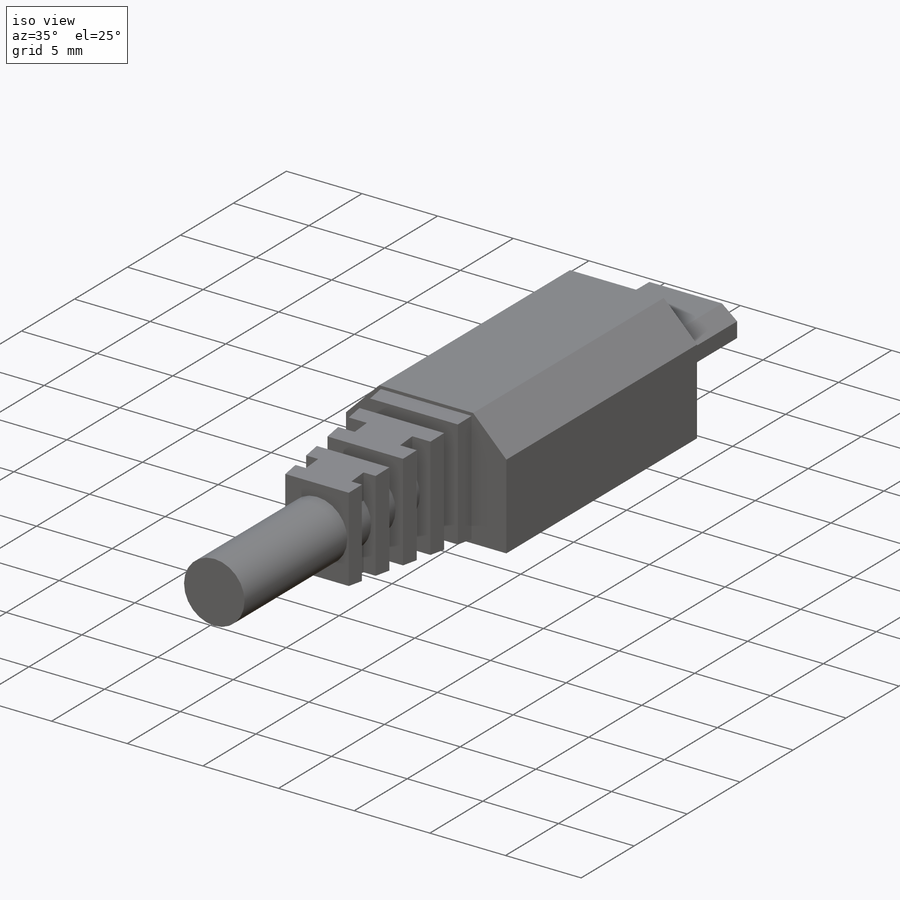
[diagram: iso view]
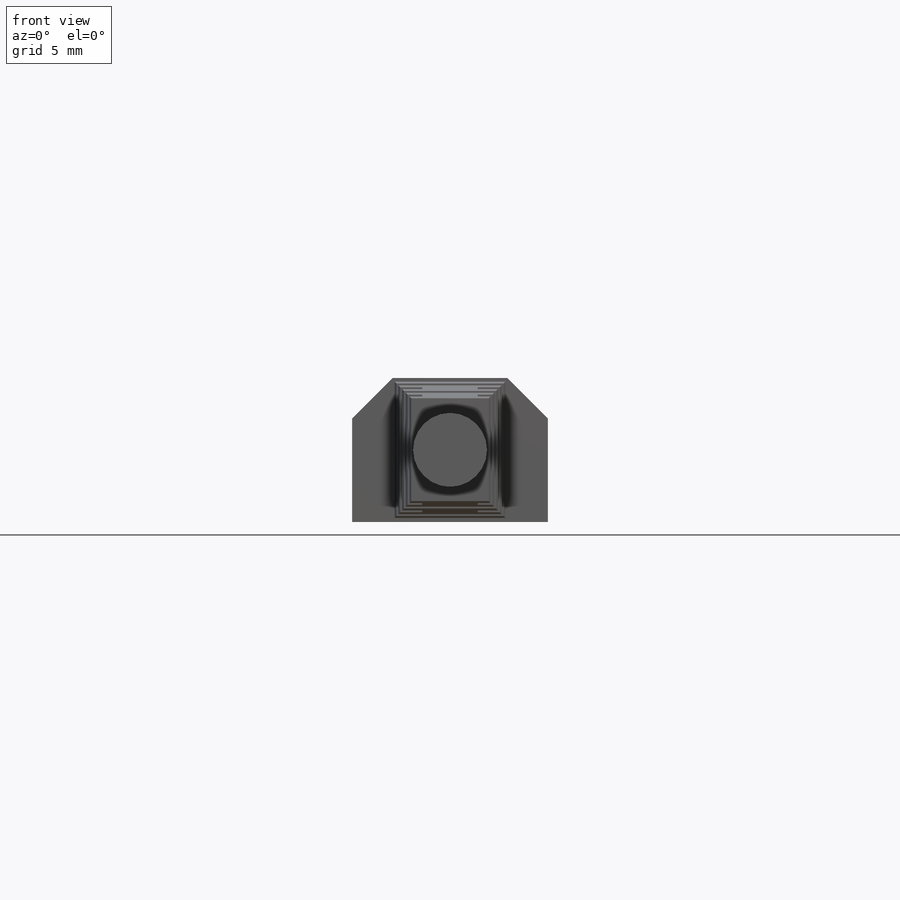
[diagram: front view]
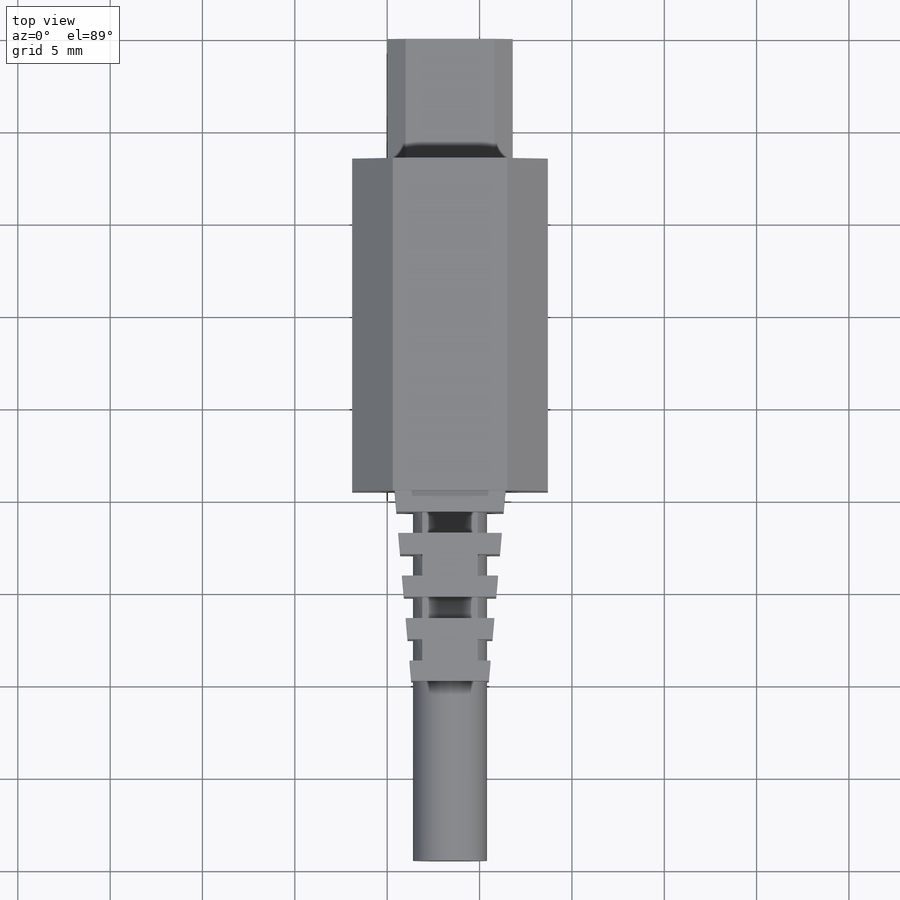
[diagram: top view]
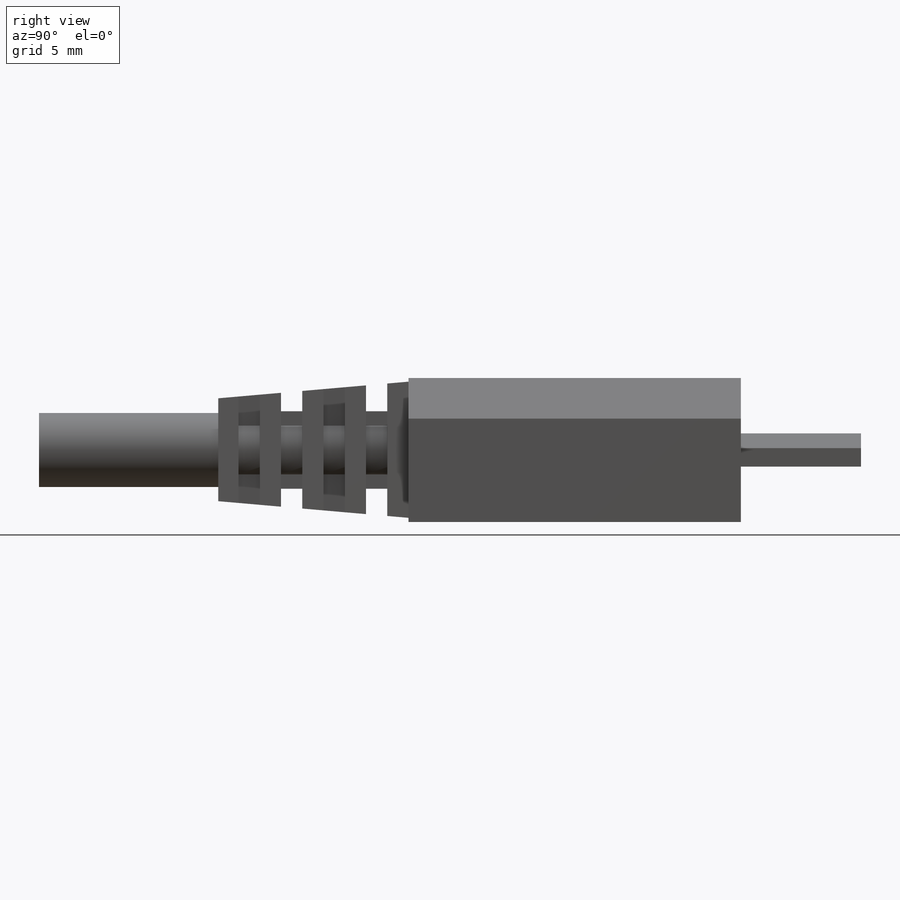
[diagram: right view]
SOLIDWORKS PART (.sldprt)
format: sldprt  version: not decoded by parser v0  size: 370,688 bytes
history: native  units: mm
features: sketch x6, extrude x4, cut_extrude x2, material x1 (+11 scaffold rows collapsed)
feature tree (24):
  scaffold x11  (default folders/planes/origin — collapsed)
  material  "Matériau <non spécifié>"
  sketch  "Sketch1"  dims[c1.D1=~9.973981mm c1.D2=~36.912254mm c2.D1=1.8mm c2.D2=6.8mm c2.D3=1.0mm c2.D4=1.0mm c2.D5=~0.347901mm c2.D6=~4.295821mm c3.D5=0.2mm c3.D6=3.7mm c3.D7=0.65mm]
  extrude  "Boss-Extrude1"  Depth=6.5mm
  sketch  "Sketch2"  dims[c1.D1=~1.73338mm c1.D2=~0.527426mm c2.D1=3.0mm c2.D2=3.0mm c2.D3=~2.629705mm c3.D1=10.6mm c3.D2=7.8mm c3.D3=2.2mm c3.D4=2.2mm]
  extrude  "Boss-Extrude2"  Depth=18mm
  sketch  "Sketch5"  dims[c1.D1=~7.371977mm c1.D2=~6.25501mm c2.D1=0.2mm c2.D2=6.0mm c2.D3=~0.135664mm]
  extrude  "Boss-Extrude4"  Depth=10.3mm
  sketch  "Sketch7"  dims[c1.D1=~1.178718mm c1.D2=~2.169554mm c2.D1=1.15mm c2.D2=~1.583605mm c2.D3=~2.169554mm c3.D2=~1.426566mm c3.D3=~2.169554mm c4.D2=~1.159085mm c4.D3=~2.169554mm c5.D2=~1.218525mm c5.D3=~2.169554mm c6.D2=~1.330784mm c6.D3=~2.169554mm c7.D2=~1.099645mm c7.D3=~2.169554mm c8.D2=~1.188805mm c8.D3=~2.169554mm c9.D2=~1.367126mm c9.D3=~2.169554mm c10.D2=1.6mm c10.D3=~3.669554mm]
  cut_extrude  "Cut-Extrude1"  Depth=10.3mm
  sketch  "Sketch9"  dims[D1=1.15mm D2=1.6mm D3=2.1mm D4=~1.784777mm]
  cut_extrude  "Cut-Extrude2"  Depth=10.3mm
  sketch  "Sketch3"  dims[D1=~2.591405mm]
  extrude  "Boss-Extrude3"  Depth=20mm
decode coverage: 12 of 12 modeling features carry decoded parameters
note: ~ marks probable driven/reference dimensions
note: suppression state not decoded; provenance and decode notes live in map.json
